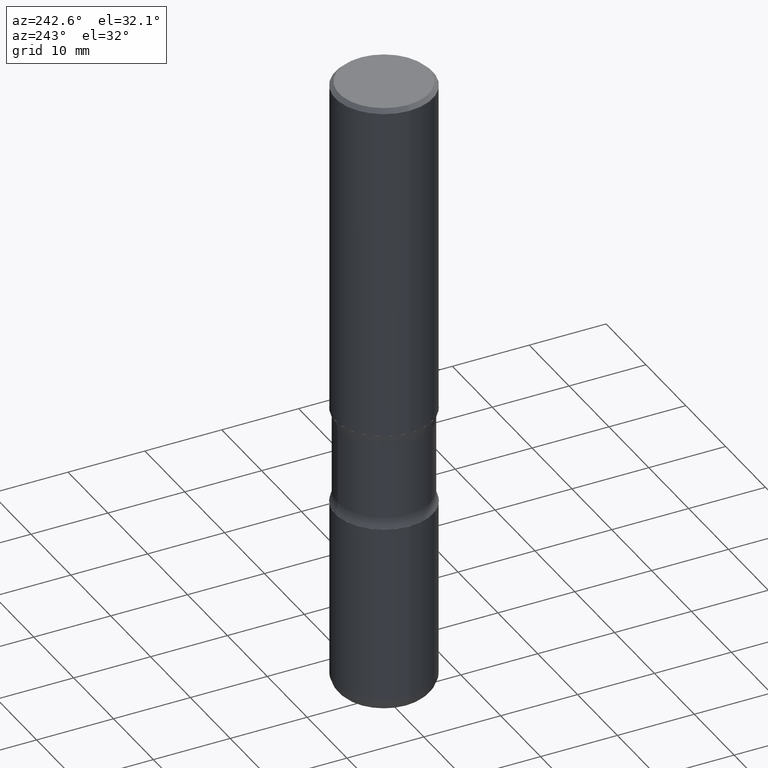
[diagram: clean part render]
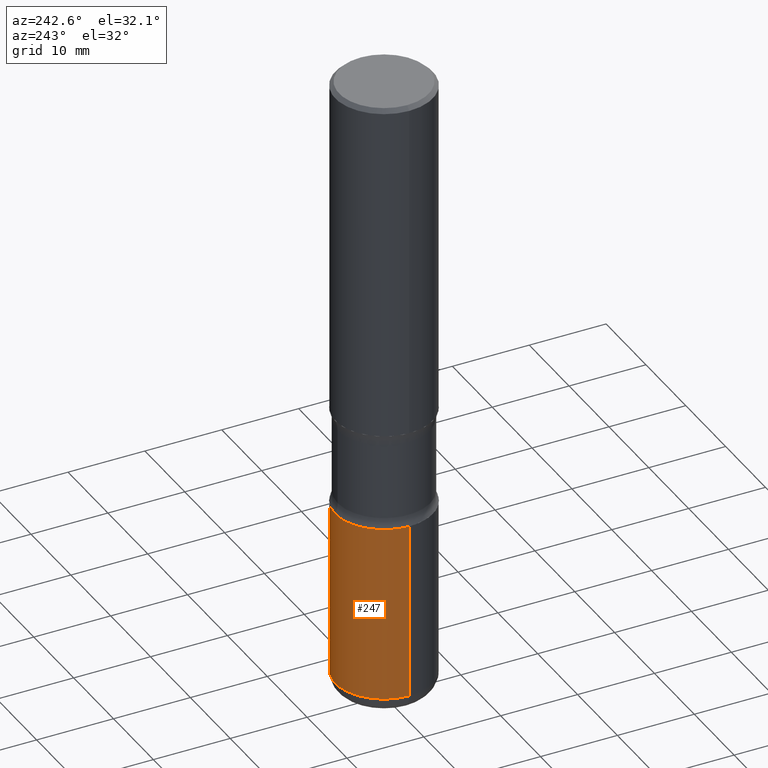
[diagram: same view with one face highlighted and labeled with its STEP entity id]
A machine part, auxiliary view. The second image highlights one B-rep face of the part: STEP entity #247.
In plain terms, the highlighted cylindrical surface (partial cylindrical patch) has radius 6.35 mm, axis along (-0, 0, 1).
Its self-contained STEP definition (entity closure, byte-faithful):
#1 = VECTOR ( 'NONE', #81, 39.37007874015748143 ) ;
#18 = CIRCLE ( 'NONE', #361, 0.2500000000000003886 ) ;
#37 = DIRECTION ( 'NONE',  ( 1.000000000000000000, -6.982962677686267499E-15, 0.000000000000000000 ) ) ;
#45 = EDGE_CURVE ( 'NONE', #233, #529, #379, .T. ) ;
#46 = AXIS2_PLACEMENT_3D ( 'NONE', #385, #346, #37 ) ;
#50 = DIRECTION ( 'NONE',  ( -2.445468806185136597E-29, 3.491481338843145583E-15, 1.000000000000000000 ) ) ;
#64 = DIRECTION ( 'NONE',  ( -2.445468806185136877E-29, 3.491481338843145188E-15, 1.000000000000000000 ) ) ;
#81 = DIRECTION ( 'NONE',  ( -2.445468806185136877E-29, 3.491481338843145188E-15, 1.000000000000000000 ) ) ;
#87 = DIRECTION ( 'NONE',  ( -2.445468806185136597E-29, 3.491481338843145583E-15, 1.000000000000000000 ) ) ;
#108 = EDGE_CURVE ( 'NONE', #233, #327, #377, .T. ) ;
#131 = DIRECTION ( 'NONE',  ( 1.000000000000000000, -6.982962677686267499E-15, 4.876176775795935793E-29 ) ) ;
#154 = EDGE_LOOP ( 'NONE', ( #272, #383, #465, #338 ) ) ;
#174 = CYLINDRICAL_SURFACE ( 'NONE', #176, 0.2500000000000003886 ) ;
#175 = CARTESIAN_POINT ( 'NONE',  ( 0.000000000000000000, 0.000000000000000000, 0.000000000000000000 ) ) ;
#176 = AXIS2_PLACEMENT_3D ( 'NONE', #175, #50, #131 ) ;
#224 = EDGE_CURVE ( 'NONE', #327, #239, #18, .T. ) ;
#233 = VERTEX_POINT ( 'NONE', #477 ) ;
#239 = VERTEX_POINT ( 'NONE', #258 ) ;
#247 = ADVANCED_FACE ( 'NONE', ( #253 ), #174, .T. ) ;
#253 = FACE_OUTER_BOUND ( 'NONE', #154, .T. ) ;
#258 = CARTESIAN_POINT ( 'NONE',  ( -0.2500000000000003886, -7.668100182170457762E-15, -2.250000000000001332 ) ) ;
#272 = ORIENTED_EDGE ( 'NONE', *, *, #45, .T. ) ;
#298 = DIRECTION ( 'NONE',  ( 1.000000000000000000, -6.982962677686263555E-15, 0.000000000000000000 ) ) ;
#306 = CARTESIAN_POINT ( 'NONE',  ( 5.502304813916559585E-29, -7.855833012397081604E-15, -2.250000000000001332 ) ) ;
#327 = VERTEX_POINT ( 'NONE', #521 ) ;
#338 = ORIENTED_EDGE ( 'NONE', *, *, #108, .F. ) ;
#346 = DIRECTION ( 'NONE',  ( -2.445468806185136597E-29, 3.491481338843145583E-15, 1.000000000000000000 ) ) ;
#358 = CARTESIAN_POINT ( 'NONE',  ( -0.2500000000000003886, 1.776356839400253226E-15, -1.229733772563728407E-29 ) ) ;
#361 = AXIS2_PLACEMENT_3D ( 'NONE', #306, #87, #298 ) ;
#377 = LINE ( 'NONE', #420, #1 ) ;
#379 = CIRCLE ( 'NONE', #46, 0.2500000000000003886 ) ;
#383 = ORIENTED_EDGE ( 'NONE', *, *, #409, .T. ) ;
#385 = CARTESIAN_POINT ( 'NONE',  ( 7.727681427545032274E-29, -1.103308103074433958E-14, -3.160000000000000142 ) ) ;
#398 = CARTESIAN_POINT ( 'NONE',  ( -0.2500000000000002220, -9.256724191344087541E-15, -3.160000000000000142 ) ) ;
#409 = EDGE_CURVE ( 'NONE', #529, #239, #496, .T. ) ;
#420 = CARTESIAN_POINT ( 'NONE',  ( 0.2500000000000003886, -1.745740669421569636E-15, 1.219044193948985910E-29 ) ) ;
#427 = VECTOR ( 'NONE', #64, 39.37007874015748143 ) ;
#465 = ORIENTED_EDGE ( 'NONE', *, *, #224, .F. ) ;
#477 = CARTESIAN_POINT ( 'NONE',  ( 0.2500000000000002220, -1.277882170016590942E-14, -3.160000000000000142 ) ) ;
#496 = LINE ( 'NONE', #358, #427 ) ;
#521 = CARTESIAN_POINT ( 'NONE',  ( 0.2500000000000003886, -9.601573681818649859E-15, -2.250000000000001332 ) ) ;
#529 = VERTEX_POINT ( 'NONE', #398 ) ;